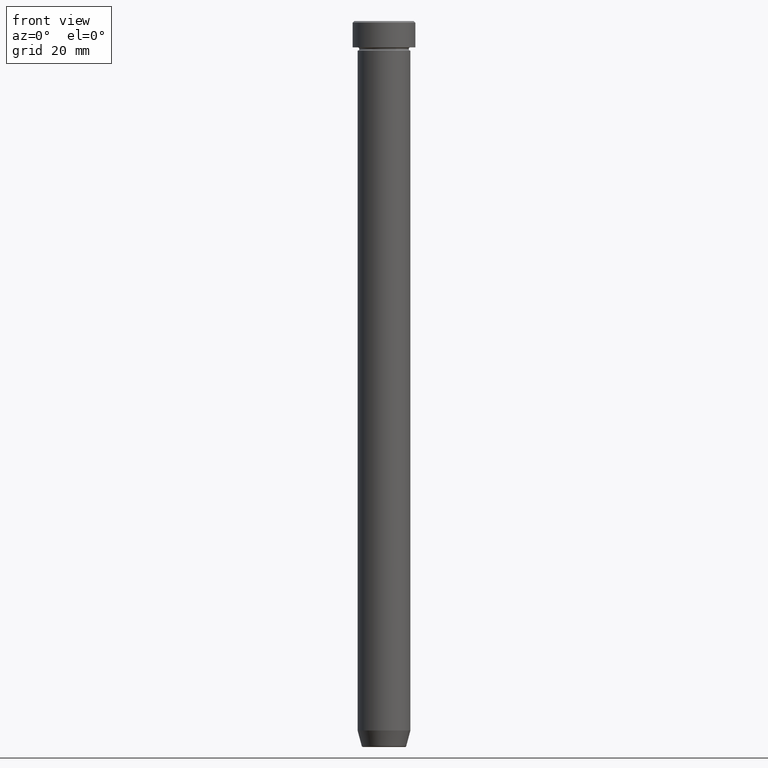
[diagram: clean part render]
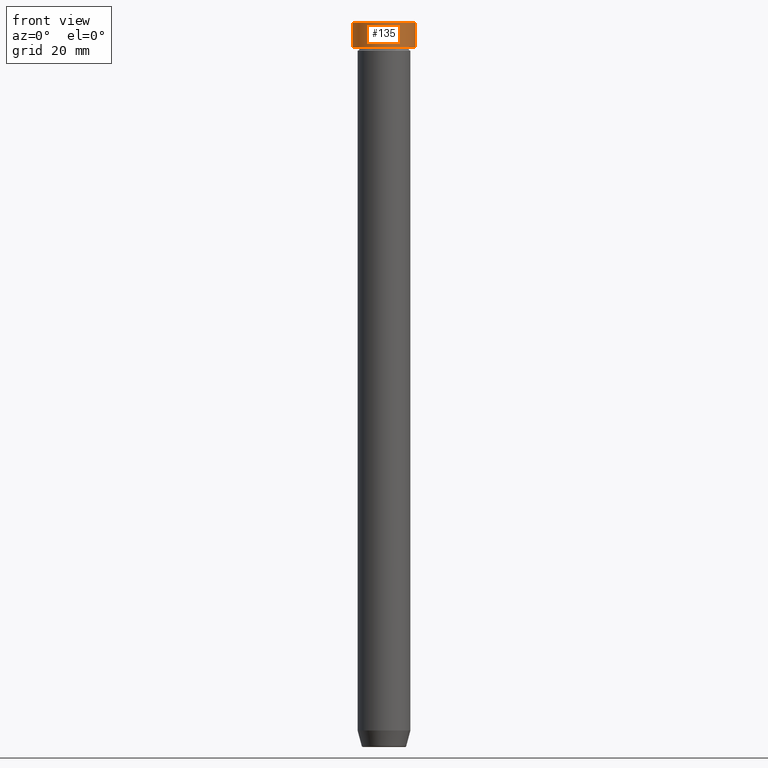
[diagram: same view with one face highlighted and labeled with its STEP entity id]
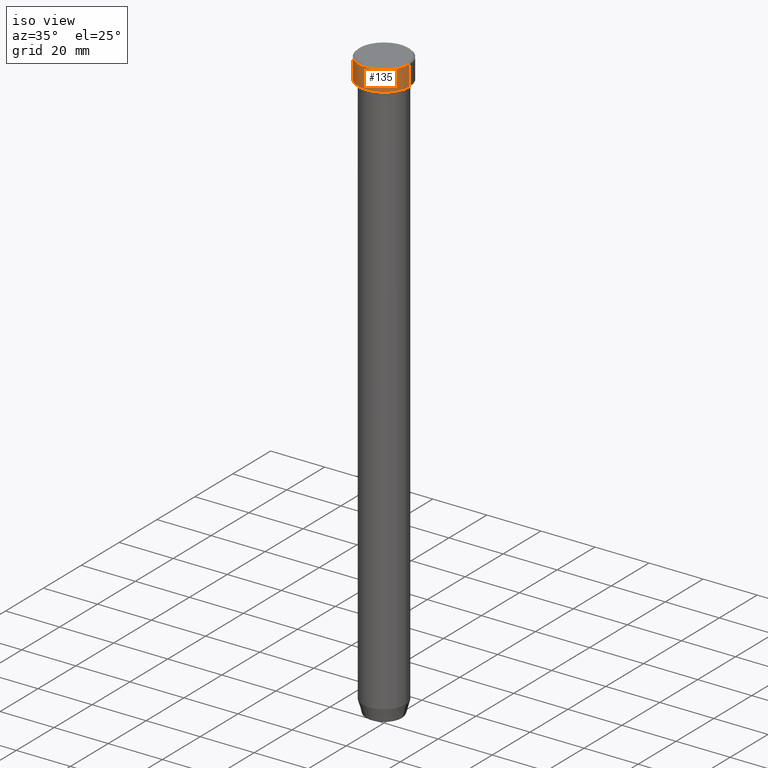
[diagram: same view with one face highlighted and labeled with its STEP entity id]
A machine part, front view. The second image highlights one B-rep face of the part: STEP entity #135.
A second angle (iso view) of the same face is appended — the face is thin or edge-on in the first view.
In plain terms, the highlighted cylindrical surface (edge-blend (fillet) strip) has radius 9.5 mm, axis along (-0, -0, 1).
Its self-contained STEP definition (entity closure, byte-faithful):
#13 = CARTESIAN_POINT ( 'NONE',  ( -9.500000000000000000, 1.163414459189985485E-15, -0.4999999999999968914 ) ) ;
#16 = LINE ( 'NONE', #152, #151 ) ;
#36 = CYLINDRICAL_SURFACE ( 'NONE', #102, 9.500000000000000000 ) ;
#46 = CARTESIAN_POINT ( 'NONE',  ( 9.500000000000000000, 0.000000000000000000, -8.000000000000000000 ) ) ;
#48 = CARTESIAN_POINT ( 'NONE',  ( 0.000000000000000000, 0.000000000000000000, -8.000000000000000000 ) ) ;
#61 = ORIENTED_EDGE ( 'NONE', *, *, #506, .T. ) ;
#69 = ORIENTED_EDGE ( 'NONE', *, *, #283, .T. ) ;
#78 = VERTEX_POINT ( 'NONE', #89 ) ;
#89 = CARTESIAN_POINT ( 'NONE',  ( 9.500000000000000000, 0.000000000000000000, -0.4999999999999968914 ) ) ;
#94 = CIRCLE ( 'NONE', #250, 9.500000000000000000 ) ;
#97 = DIRECTION ( 'NONE',  ( 1.000000000000000000, 0.000000000000000000, 0.000000000000000000 ) ) ;
#102 = AXIS2_PLACEMENT_3D ( 'NONE', #443, #415, #270 ) ;
#115 = CARTESIAN_POINT ( 'NONE',  ( -9.500000000000000000, 1.163414459189985485E-15, -8.000000000000000000 ) ) ;
#135 = ADVANCED_FACE ( 'NONE', ( #411 ), #36, .T. ) ;
#150 = DIRECTION ( 'NONE',  ( -0.000000000000000000, -0.000000000000000000, 1.000000000000000000 ) ) ;
#151 = VECTOR ( 'NONE', #520, 1000.000000000000000 ) ;
#152 = CARTESIAN_POINT ( 'NONE',  ( 9.500000000000000000, 0.000000000000000000, 0.000000000000000000 ) ) ;
#250 = AXIS2_PLACEMENT_3D ( 'NONE', #48, #150, #97 ) ;
#253 = LINE ( 'NONE', #289, #555 ) ;
#270 = DIRECTION ( 'NONE',  ( 1.000000000000000000, 0.000000000000000000, 0.000000000000000000 ) ) ;
#283 = EDGE_CURVE ( 'NONE', #582, #315, #94, .T. ) ;
#289 = CARTESIAN_POINT ( 'NONE',  ( -9.500000000000000000, 1.163414459189985485E-15, 0.000000000000000000 ) ) ;
#307 = EDGE_CURVE ( 'NONE', #582, #543, #253, .T. ) ;
#315 = VERTEX_POINT ( 'NONE', #46 ) ;
#316 = EDGE_CURVE ( 'NONE', #78, #543, #370, .T. ) ;
#335 = CARTESIAN_POINT ( 'NONE',  ( 0.000000000000000000, 0.000000000000000000, -0.4999999999999968914 ) ) ;
#370 = CIRCLE ( 'NONE', #518, 9.500000000000000000 ) ;
#404 = ORIENTED_EDGE ( 'NONE', *, *, #307, .F. ) ;
#411 = FACE_OUTER_BOUND ( 'NONE', #445, .T. ) ;
#415 = DIRECTION ( 'NONE',  ( -0.000000000000000000, -0.000000000000000000, 1.000000000000000000 ) ) ;
#443 = CARTESIAN_POINT ( 'NONE',  ( 0.000000000000000000, 0.000000000000000000, 0.000000000000000000 ) ) ;
#445 = EDGE_LOOP ( 'NONE', ( #404, #69, #61, #528 ) ) ;
#506 = EDGE_CURVE ( 'NONE', #315, #78, #16, .T. ) ;
#513 = DIRECTION ( 'NONE',  ( 1.000000000000000000, 0.000000000000000000, 0.000000000000000000 ) ) ;
#517 = DIRECTION ( 'NONE',  ( -0.000000000000000000, -0.000000000000000000, 1.000000000000000000 ) ) ;
#518 = AXIS2_PLACEMENT_3D ( 'NONE', #335, #553, #513 ) ;
#520 = DIRECTION ( 'NONE',  ( -0.000000000000000000, -0.000000000000000000, 1.000000000000000000 ) ) ;
#528 = ORIENTED_EDGE ( 'NONE', *, *, #316, .T. ) ;
#543 = VERTEX_POINT ( 'NONE', #13 ) ;
#553 = DIRECTION ( 'NONE',  ( 0.000000000000000000, 0.000000000000000000, -1.000000000000000000 ) ) ;
#555 = VECTOR ( 'NONE', #517, 1000.000000000000000 ) ;
#582 = VERTEX_POINT ( 'NONE', #115 ) ;